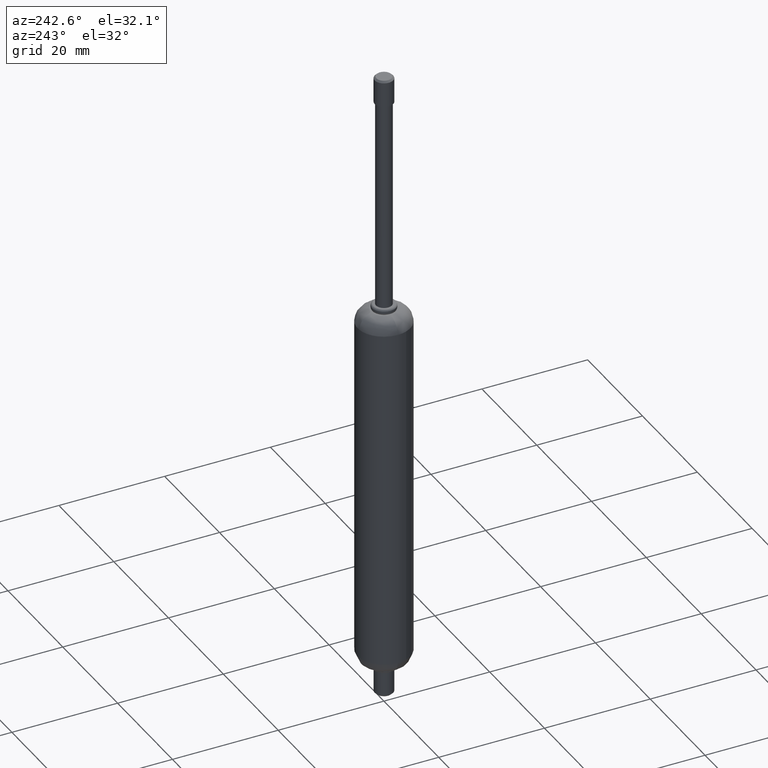
[diagram: clean part render]
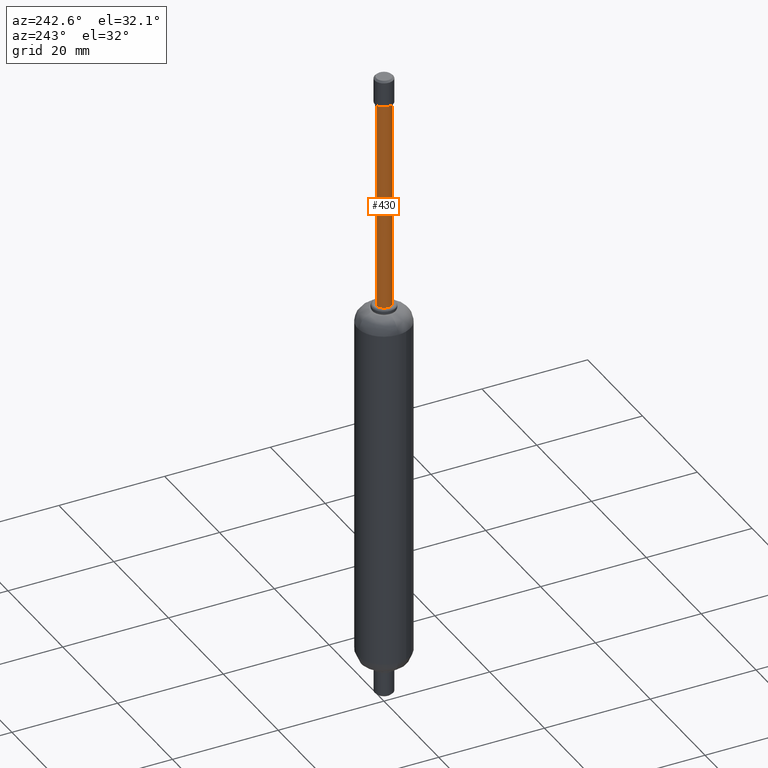
[diagram: same view with one face highlighted and labeled with its STEP entity id]
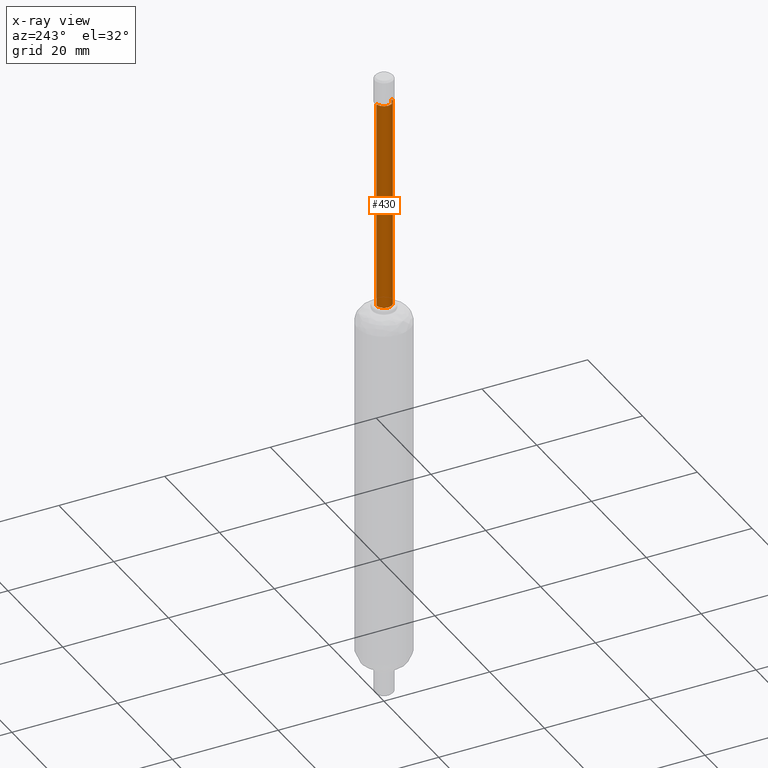
[diagram: x-ray of the same camera — body ghosted, the highlighted face saturated]
A machine part, auxiliary view. The second image highlights one B-rep face of the part: STEP entity #430.
The next image is the same camera in x-ray: the body ghosted, the highlighted face saturated — about 0% of this face is hidden behind the body in this view.
In plain terms, the highlighted face is a freeform B-spline surface patch.
Its self-contained STEP definition (entity closure, byte-faithful):
#267=CARTESIAN_POINT('',(-0.177051352329437,1.489514289504173,41.0));
#268=VERTEX_POINT('',#267);
#286=CARTESIAN_POINT('',(0.091573057307112,-1.497202182463769,41.0));
#287=VERTEX_POINT('',#286);
#301=CARTESIAN_POINT('',(0.091573057307112,-1.497202182463769,0.999999999999999));
#302=VERTEX_POINT('',#301);
#303=CARTESIAN_POINT('',(0.091573057307112,-1.497202182463769,41.0));
#304=CARTESIAN_POINT('',(0.091573057307112,-1.497202182463769,0.999999999999999));
#305=QUASI_UNIFORM_CURVE('',1,(#303,#304),.UNSPECIFIED.,.F.,.U.);
#306=EDGE_CURVE('',#287,#302,#305,.T.);
#323=CARTESIAN_POINT('',(-0.177051352329437,1.489514289504173,0.999999999999999));
#324=VERTEX_POINT('',#323);
#340=CARTESIAN_POINT('',(-0.177051352329437,1.489514289504173,41.0));
#341=CARTESIAN_POINT('',(-0.177051352329437,1.489514289504173,0.999999999999999));
#342=QUASI_UNIFORM_CURVE('',1,(#340,#341),.UNSPECIFIED.,.F.,.U.);
#343=EDGE_CURVE('',#268,#324,#342,.T.);
#348=CARTESIAN_POINT('',(0.091572809302454,-1.497202197632425,42.000000000000007));
#349=CARTESIAN_POINT('',(-1.405629388329970,-1.588775006934688,42.000000000000007));
#350=CARTESIAN_POINT('',(-1.497202197632233,-0.091572809302263,42.000000000000007));
#351=CARTESIAN_POINT('',(-1.583679295098203,1.322315236258920,42.000000000000014));
#352=CARTESIAN_POINT('',(-0.177051351984902,1.489514289545126,42.000000000000021));
#353=CARTESIAN_POINT('',(0.091572809302454,-1.497202197632425,-0.024999999999999));
#354=CARTESIAN_POINT('',(-1.405629388329970,-1.588775006934688,-0.024999999999999));
#355=CARTESIAN_POINT('',(-1.497202197632233,-0.091572809302263,-0.024999999999999));
#356=CARTESIAN_POINT('',(-1.583679295098203,1.322315236258920,-0.024999999999999));
#357=CARTESIAN_POINT('',(-0.177051351984902,1.489514289545126,-0.024999999999999));
#365=(BOUNDED_SURFACE()B_SPLINE_SURFACE(2,1,((#348,#353),(#349,#354),(#350,#355),(#351,#356),(#352,#357)),.UNSPECIFIED.,.F.,.F.,.U.)B_SPLINE_SURFACE_WITH_KNOTS((3,2,3),(2,2),(0.0,1.570796326794897,3.078760800517997),(0.0,42.025000000000020),.UNSPECIFIED.)GEOMETRIC_REPRESENTATION_ITEM()RATIONAL_B_SPLINE_SURFACE(((1.0,1.0),(0.707106781186548,0.707106781186548),(1.0,1.0),(0.718822509939086,0.718822509939086),(0.977505800795127,0.977505800795127)))REPRESENTATION_ITEM('')SURFACE());
#366=CARTESIAN_POINT('',(-1.499999999999432,0.0,41.0));
#367=VERTEX_POINT('',#366);
#368=CARTESIAN_POINT('',(-1.499999999999432,0.0,41.0));
#369=CARTESIAN_POINT('',(-1.499999999999433,1.332261788306055,40.999999999999993));
#370=CARTESIAN_POINT('',(-0.177051352329437,1.489514289504173,40.999999999999993));
#378=(BOUNDED_CURVE()B_SPLINE_CURVE(2,(#368,#369,#370),.UNSPECIFIED.,.F.,.U.)B_SPLINE_CURVE_WITH_KNOTS((3,3),(0.0,0.229562473437461),.UNSPECIFIED.)CURVE()GEOMETRIC_REPRESENTATION_ITEM()RATIONAL_B_SPLINE_CURVE((1.0,0.731050832944498,0.956026754034643))REPRESENTATION_ITEM(''));
#379=EDGE_CURVE('',#367,#268,#378,.T.);
#380=ORIENTED_EDGE('',*,*,#379,.T.);
#381=ORIENTED_EDGE('',*,*,#343,.T.);
#382=CARTESIAN_POINT('',(-1.499999999999432,0.0,1.0));
#383=VERTEX_POINT('',#382);
#384=CARTESIAN_POINT('',(-1.499999999999432,0.0,1.0));
#385=CARTESIAN_POINT('',(-1.499999999999433,1.332261788306054,1.0));
#386=CARTESIAN_POINT('',(-0.177051352329437,1.489514289504173,0.999999999999999));
#394=(BOUNDED_CURVE()B_SPLINE_CURVE(2,(#384,#385,#386),.UNSPECIFIED.,.F.,.U.)B_SPLINE_CURVE_WITH_KNOTS((3,3),(0.0,0.229562473437461),.UNSPECIFIED.)CURVE()GEOMETRIC_REPRESENTATION_ITEM()RATIONAL_B_SPLINE_CURVE((1.0,0.731050832944498,0.956026754034643))REPRESENTATION_ITEM(''));
#395=EDGE_CURVE('',#383,#324,#394,.T.);
#396=ORIENTED_EDGE('',*,*,#395,.F.);
#397=CARTESIAN_POINT('',(0.091573057307112,-1.497202182463769,0.999999999999999));
#398=CARTESIAN_POINT('',(0.045829393648106,-1.499999999999624,1.0));
#399=CARTESIAN_POINT('',(1.918465E-013,-1.499999999999624,1.0));
#400=CARTESIAN_POINT('',(-1.499999999999432,-1.499999999999625,1.0));
#401=CARTESIAN_POINT('',(-1.499999999999432,0.0,1.0));
#409=(BOUNDED_CURVE()B_SPLINE_CURVE(2,(#397,#398,#399,#400,#401),.UNSPECIFIED.,.F.,.U.)B_SPLINE_CURVE_WITH_KNOTS((3,2,3),(0.739332905078807,0.750000000000000,1.0),.UNSPECIFIED.)CURVE()GEOMETRIC_REPRESENTATION_ITEM()RATIONAL_B_SPLINE_CURVE((0.976071919161696,0.987502720932573,1.0,0.707106781186548,1.0))REPRESENTATION_ITEM(''));
#410=EDGE_CURVE('',#302,#383,#409,.T.);
#411=ORIENTED_EDGE('',*,*,#410,.F.);
#412=ORIENTED_EDGE('',*,*,#306,.F.);
#413=CARTESIAN_POINT('',(0.091573057307112,-1.497202182463769,41.0));
#414=CARTESIAN_POINT('',(0.045829393648106,-1.499999999999624,41.0));
#415=CARTESIAN_POINT('',(1.918465E-013,-1.499999999999624,41.0));
#416=CARTESIAN_POINT('',(-1.499999999999432,-1.499999999999625,41.0));
#417=CARTESIAN_POINT('',(-1.499999999999432,0.0,41.0));
#425=(BOUNDED_CURVE()B_SPLINE_CURVE(2,(#413,#414,#415,#416,#417),.UNSPECIFIED.,.F.,.U.)B_SPLINE_CURVE_WITH_KNOTS((3,2,3),(0.739332905078807,0.750000000000000,1.0),.UNSPECIFIED.)CURVE()GEOMETRIC_REPRESENTATION_ITEM()RATIONAL_B_SPLINE_CURVE((0.976071919161696,0.987502720932573,1.0,0.707106781186548,1.0))REPRESENTATION_ITEM(''));
#426=EDGE_CURVE('',#287,#367,#425,.T.);
#427=ORIENTED_EDGE('',*,*,#426,.T.);
#428=EDGE_LOOP('',(#380,#381,#396,#411,#412,#427));
#429=FACE_OUTER_BOUND('',#428,.T.);
#430=ADVANCED_FACE('',(#429),#365,.T.);